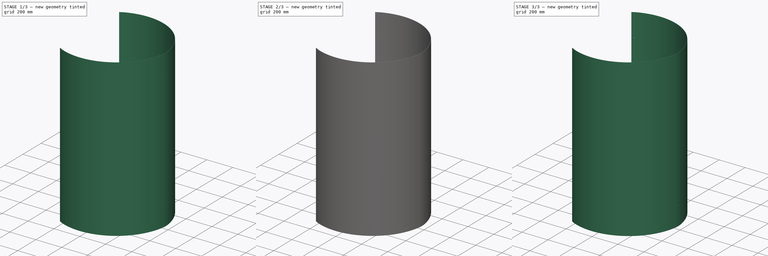
[diagram: build sequence overview — one tinted view per stage of 3, left to right]
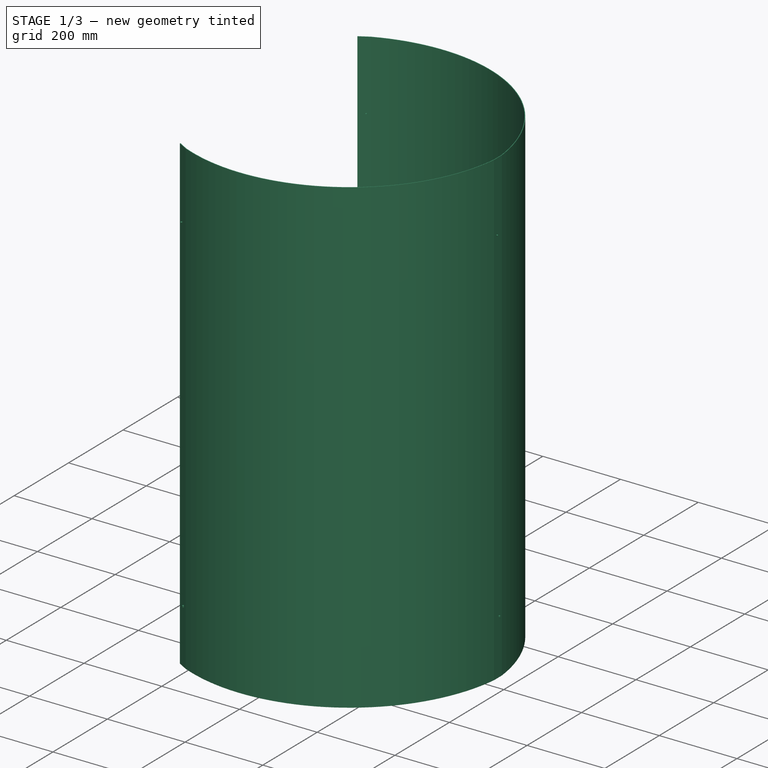
[diagram: stage 1 of 3 — iso view after this stage's code; geometry added in this stage tinted green]
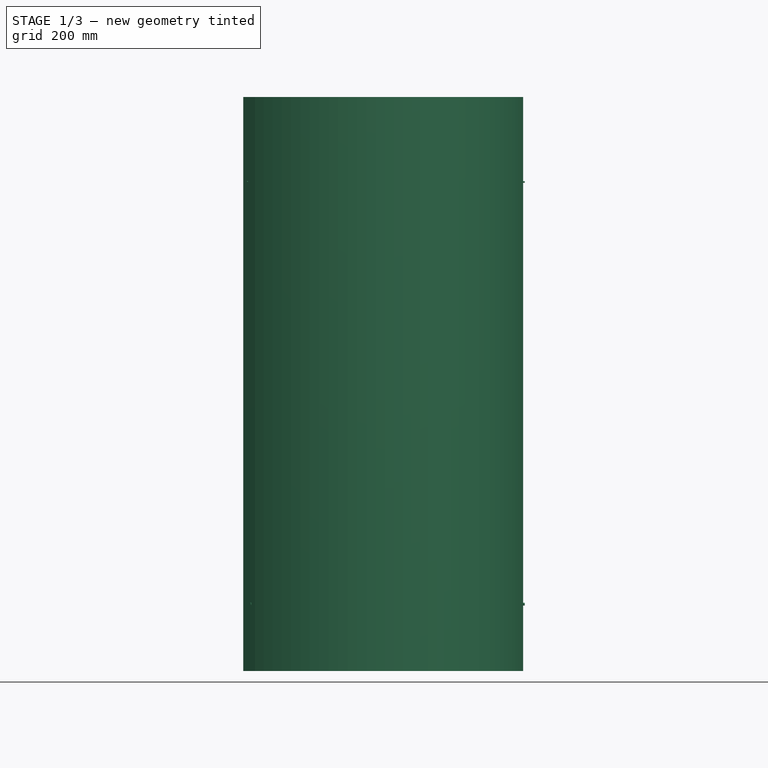
[diagram: stage 1 of 3 — front view after this stage's code; geometry added in this stage tinted green]
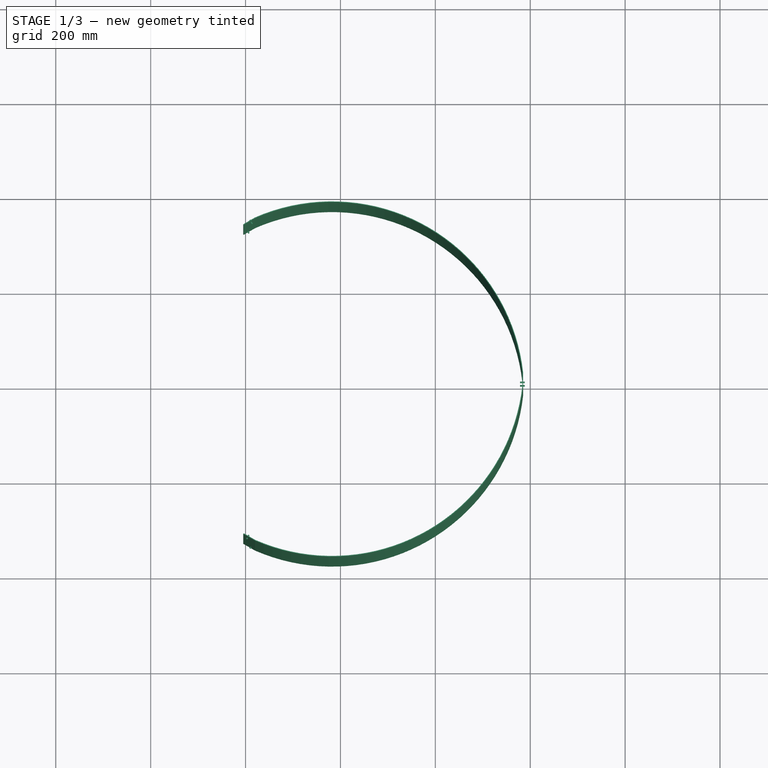
[diagram: stage 1 of 3 — top view after this stage's code; geometry added in this stage tinted green]
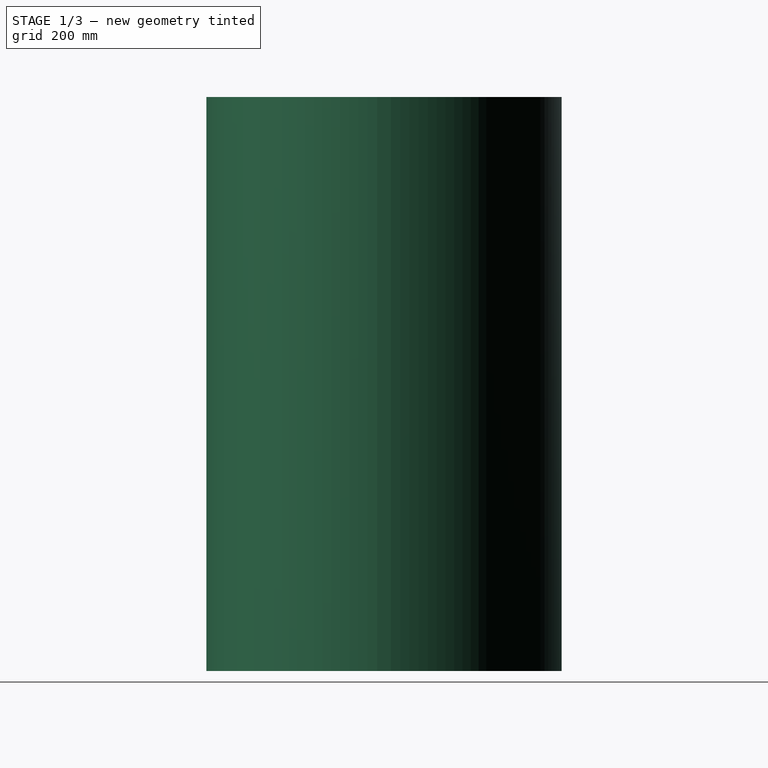
[diagram: stage 1 of 3 — right view after this stage's code; geometry added in this stage tinted green]
FCSTD DOCUMENT  (FreeCAD 1.1R38827 (Git))
Label: composit_stand3_plexiglass_outer_model
License: All rights reserved
LicenseURL: http://en.wikipedia.org/wiki/All_rights_reserved
objects: PartDesign::SubShapeBinder×3, App::Link×3, Part::FeaturePython×3, PartDesign::FeaturePython×2, PartDesign::Body×2, Part::Cylinder×1, PartDesign::CoordinateSystem×1, Sketcher::SketchObject×1, Part::Extrusion×1, Part::MultiFuse×1, PartDesign::Boolean×1
note: 20 computed .brp shape members not serialized (recipe doc carries the construction recipe); baked Part::Feature solids carry a one-line shape summary decoded from their .brp
EXTERNAL_REF file=composit_stand3_plexiglass_outer_main.FCStd obj=Connect
EXTERNAL_REF file=composit_stand3_plexiglass_outer_main.FCStd obj=Spreadsheet
EXTERNAL_REF file=composit_stand3_plexiglass_outer_main.FCStd obj=Populate001
EXTERNAL_REF file=composit_stand3_plexiglass_outer_main.FCStd obj=Sketch
EXTERNAL_REF file=composit_stand3_bar_main.FCStd obj=Spreadsheet
EXTERNAL_REF file=composit_stand3_bar_main.FCStd obj=Placment003
EXTERNAL_REF file=../ULZ-P02-14W.FCStd obj=Sketch
EXTERNAL_REF file=composit_stand3_plexiglass_outer_main.FCStd obj=PolarArray

FEATURE [PartDesign::SubShapeBinder] Binder
  BindCopyOnChange = 0
  BindMode = 0
  ClaimChildren = true
  Fuse = false
  MakeFace = true
  OffsetFill = false
  OffsetIntersection = false
  OffsetJoinType = 0
  OffsetOpenResult = false
  PartialLoad = false
  Relative = true
  Support = -> [<external composit_stand3_plexiglass_outer_main.FCStd>#Connect]
  _Version = 2
FEATURE [PartDesign::SubShapeBinder] Binder001
  BindCopyOnChange = 0
  BindMode = 0
  ClaimChildren = false
  Context = -> Body [Binder001.]
  Fuse = false
  MakeFace = true
  OffsetFill = false
  OffsetIntersection = false
  OffsetJoinType = 0
  OffsetOpenResult = false
  PartialLoad = false
  Relative = true
  Support = -> [Binder]
  _Version = 2
FEATURE [PartDesign::FeaturePython] BaseBend  # WARN: FeaturePython — macro-defined, semantics opaque (R4)
  BendSide = 0
  BendSketch = -> Binder001
  MidPlane = false
  Reverse = false
  Suppressed = false
  length = 1210
  radius = 1
  thickness = 1.5
  expr: length = <<composit_stand3_plexiglass_outer_main>>#<<Properties>>.height
  expr: thickness = <<composit_stand3_plexiglass_outer_main>>#<<Properties>>.thickness
FEATURE [Part::FeaturePython] Populate  label="Populate Populate PolarArray with bar_fix_placements with Cylinder"  # WARN: FeaturePython — macro-defined, semantics opaque (R4)
  Copying = 0
  ExposePlacement = false
  MarkerShape = 1
  MarkerSize = 0
  NumElements = 0
  Object = -> Cylinder
  OutputCompounding = 1
  PlacementsTo = -> Link
  Referencing = 0
  Type = lattice2PopulateCopies.LatticePopulateCopies
  isLattice = 0
FEATURE [PartDesign::Body] Body001
  AllowCompound = false
  Origin = -> Origin001
FEATURE [PartDesign::CoordinateSystem] Local_CS  label="top_LCS"
  AttacherType = Attacher::AttachEngine3D
  AttachmentOffset = pos=(383.5,0,1210) rot=(0,0,1;3.14159rad)
  AttachmentSupport = -> [XY_Plane]
  MapMode = 5
  Placement = pos=(383.5,0,1210) rot=(0,0,1;3.14159rad)
  expr: .AttachmentOffset.Base.x = <<composit_stand3_plexiglass_outer_main>>#<<base_Sketch>>.Constraints.offset
  expr: .AttachmentOffset.Base.z = <<BaseBend>>.length
FEATURE [App::Link] Link001  label="lamp_placement"
  LinkPlacement = pos=(0,0,-474) rot=(0,0,1;0rad)
  LinkTransform = true
  LinkedObject = -> <external composit_stand3_bar_main.FCStd>#Placment003
  Placement = pos=(0,0,-474) rot=(0,0,1;0rad)
  expr: .Placement.Base.z = <<composit_stand3_plexiglass_outer_main>>#<<Properties>>.height - <<composit_stand3_bar_main>>#<<Properties>>.height
FEATURE [PartDesign::SubShapeBinder] Binder002
  BindCopyOnChange = 0
  BindMode = 0
  ClaimChildren = true
  Fuse = false
  MakeFace = true
  OffsetFill = false
  OffsetIntersection = false
  OffsetJoinType = 0
  OffsetOpenResult = false
  PartialLoad = false
  Relative = false
  Support = -> [<external ../ULZ-P02-14W.FCStd>#Sketch]
  _Version = 2
  expr: Support = <<ULZ-P02-14W>>#<<holes>>._self
FEATURE [App::Link] Link003  label="PolarArray"
  LinkedObject = -> <external composit_stand3_plexiglass_outer_main.FCStd>#PolarArray
FEATURE [Part::FeaturePython] Populate001  label="Populate PolarArray with lamp_placement"  # WARN: FeaturePython — macro-defined, semantics opaque (R4)
  Copying = 0
  ExposePlacement = false
  MarkerShape = 1
  MarkerSize = 0
  NumElements = 3
  Object = -> Link001
  OutputCompounding = 0
  PlacementsTo = -> Link003
  Referencing = 0
  Type = lattice2PopulateCopies.LatticePopulateCopies
  isLattice = 1
FEATURE [Sketcher::SketchObject] Sketch
  ArcFitTolerance = 1e-06
  FullyConstrained = false
  MakeInternals = false
  sketch-geometry (5):
    g0: Circle CenterX=-4.15 CenterY=445 CenterZ=0 NormalX=0 NormalY=0 NormalZ=1 AngleXU=0 Radius=1.7
    g1: ArcOfCircle CenterX=4.15 CenterY=-446.311 CenterZ=0 NormalX=0 NormalY=0 NormalZ=1 AngleXU=0 Radius=1.7 StartAngle=3.14159 EndAngle=6.28319
    g2: ArcOfCircle CenterX=4.15 CenterY=-443.689 CenterZ=0 NormalX=0 NormalY=0 NormalZ=1 AngleXU=0 Radius=1.7 StartAngle=-2.7e-15 EndAngle=3.14159
    g3: LineSegment StartX=2.45 StartY=-446.311 StartZ=0 EndX=2.45 EndY=-443.689 EndZ=0
    g4: LineSegment StartX=5.85 StartY=-446.311 StartZ=0 EndX=5.85 EndY=-443.689 EndZ=0
  constraints (10):
    c: Coincident(g0,g-3)
    c: Diameter(g0) = 3.4
    c: Tangent(g1,g3) = 1.5708
    c: Tangent(g1,g4) = -1.5708
    c: Tangent(g2,g3) = 1.5708
    c: Tangent(g2,g4) = -1.5708
    c: Equal(g1,g2)
    c: Vertical(g3)
    c: Symmetric(g1,g2,g-4)
    c: Equal(g2,g0)
FEATURE [Part::Extrusion] Extrude001
  Base = -> Sketch
  Dir = (0,0,1)
  DirMode = 2
  FaceMakerClass = Part::FaceMakerBullseye
  FaceMakerMode = 3
  LengthFwd = 10
  LengthRev = 0
  Solid = true
  Symmetric = true
FEATURE [Part::FeaturePython] Populate002  label="Populate Populate PolarArray with lamp_placement with Extrude"  # WARN: FeaturePython — macro-defined, semantics opaque (R4)
  Copying = 0
  ExposePlacement = false
  MarkerShape = 1
  MarkerSize = 0
  NumElements = 0
  Object = -> Extrude001
  OutputCompounding = 1
  PlacementsTo = -> Populate001
  Referencing = 0
  Type = lattice2PopulateCopies.LatticePopulateCopies
  isLattice = 0
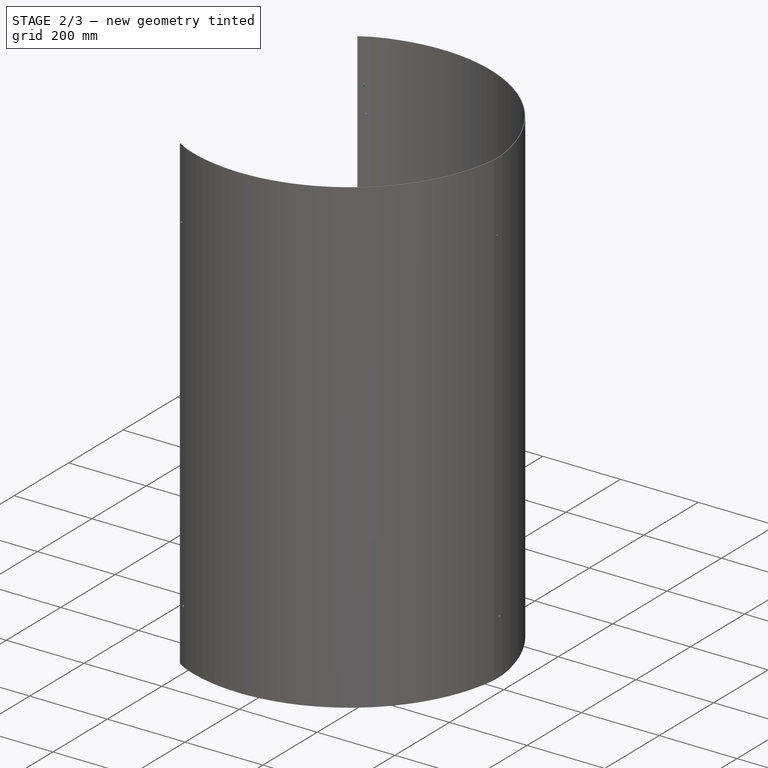
[diagram: stage 2 of 3 — iso view after this stage's code; geometry added in this stage tinted green]
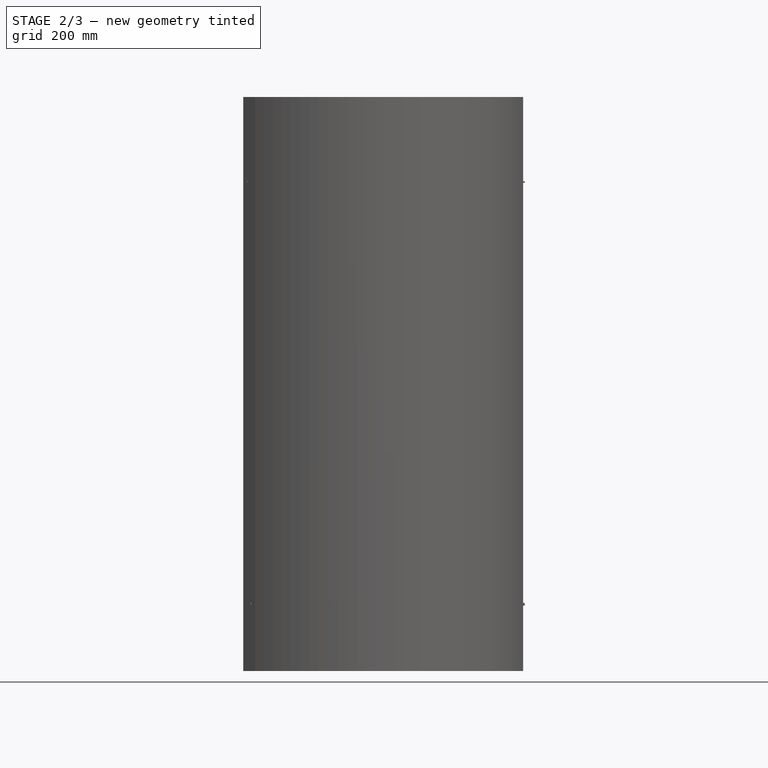
[diagram: stage 2 of 3 — front view after this stage's code; geometry added in this stage tinted green]
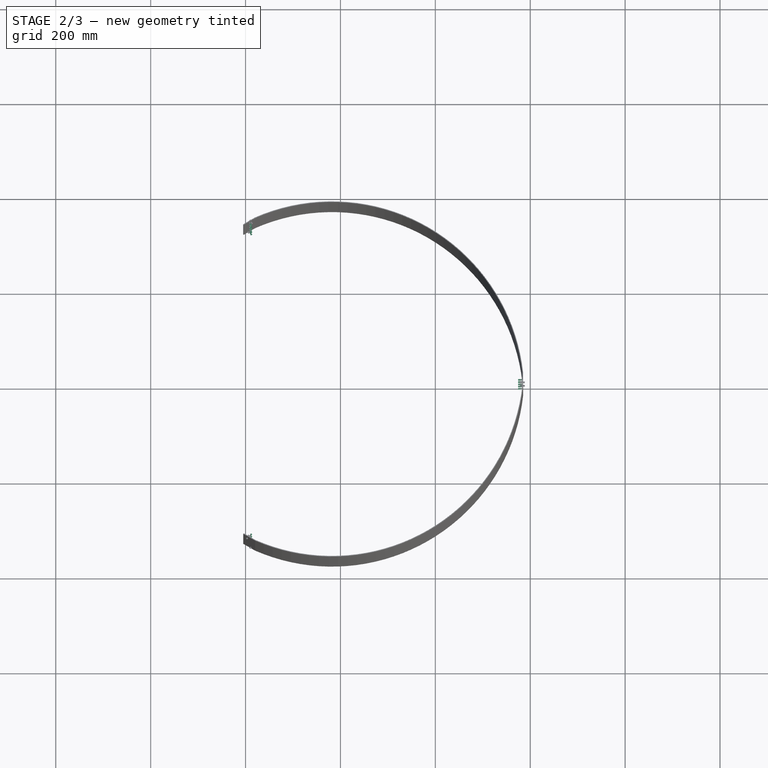
[diagram: stage 2 of 3 — top view after this stage's code; geometry added in this stage tinted green]
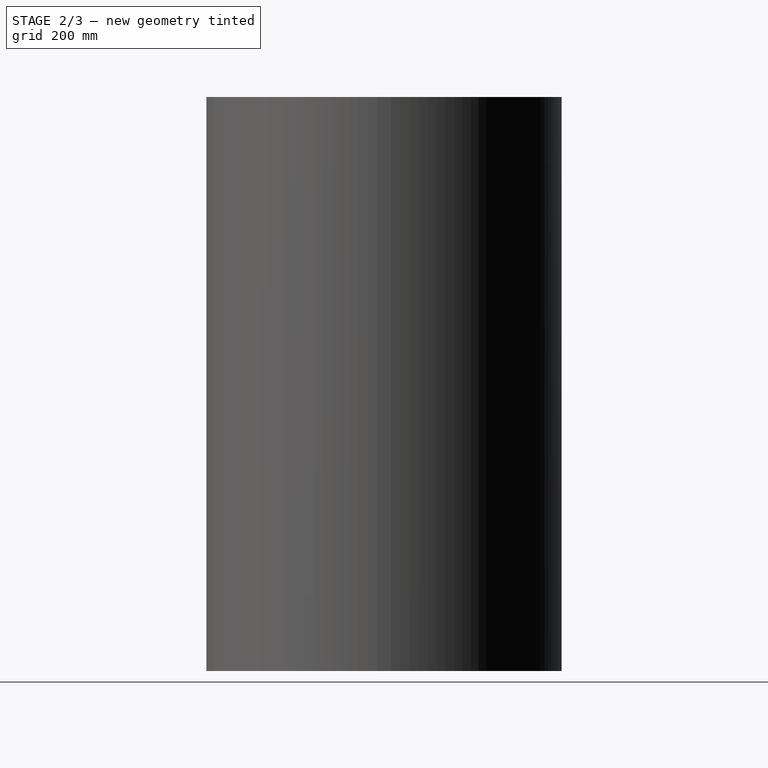
[diagram: stage 2 of 3 — right view after this stage's code; geometry added in this stage tinted green]
FEATURE [App::Link] Link  label="Populate PolarArray with bar_fix_placements"
  LinkedObject = -> <external composit_stand3_plexiglass_outer_main.FCStd>#Populate001
FEATURE [Part::Cylinder] Cylinder
  Angle = 360
  AttacherType = Attacher::AttachEngine3D
  FirstAngle = 0
  Height = 10
  Radius = 1.7
  SecondAngle = 0
FEATURE [PartDesign::Body] Body  label="plexiglass_outer"
  AllowCompound = false
  Group = -> [Binder001,BaseBend,Extend,Boolean,Local_CS]
  Origin = -> Origin
  Tip = -> Boolean

RESOLVED EXTERNAL PARTS (link-assembly join: the EXTERNAL_REF files above that resolve inside this repo's crawl, each included once):
---- part ../ULZ-P02-14W.FCStd = doc fcstd_d946428e1785 ----
FCSTD DOCUMENT  (FreeCAD 1.1R38827 (Git))
Label: ULZ-P02-14W
License: All rights reserved
LicenseURL: http://en.wikipedia.org/wiki/All_rights_reserved
objects: Sketcher::SketchObject×4, Part::FeaturePython×4, App::DocumentObjectGroup×3, Path::FeaturePython×3, App::FeaturePython×1, Part::Part2DObjectPython×1, PartDesign::SubShapeBinder×1, PartDesign::Pad×1, PartDesign::CoordinateSystem×1, PartDesign::Body×1
note: 20 computed .brp shape members not serialized (recipe doc carries the construction recipe); baked Part::Feature solids carry a one-line shape summary decoded from their .brp

FEATURE [Sketcher::SketchObject] Sketch  label="holes"
  ArcFitTolerance = 0
  FullyConstrained = true
  MakeInternals = false
  sketch-geometry (3):
    g0: Circle CenterX=-4.15 CenterY=445 CenterZ=0 NormalX=0 NormalY=0 NormalZ=1 AngleXU=0 Radius=1.6
    g1: Circle CenterX=4.15 CenterY=-445 CenterZ=0 NormalX=0 NormalY=0 NormalZ=1 AngleXU=0 Radius=1.6
    g2: GeomPoint [constr] X=-9.05 Y=0 Z=0
  constraints (8):
    c: Symmetric(g1,g0,g-1)
    c: Distance(g0,g1) = 890.039
    c: PointOnObject(g2,g-1)
    c: DistanceX(g2,g0) = 4.9
    c: DistanceX(g2) = -9.05
    c: DistanceY(g1,g0) = 890
    c: Equal(g1,g0)
    c: Diameter(g1) = 3.2
FEATURE [App::FeaturePython] SetupSheet  # Path/CAM operation (typed FeaturePython)
  ClearanceHeightExpression = OpStockZMax+SetupSheet.ClearanceHeightOffset
  ClearanceHeightOffset = 5
  CoolantMode = 0
  CoolantModes = None | Flood | Mist
  FinalDepthExpression = -0.1 mm
  HorizRapid = 0
  ProfileDirection = 1
  ProfileSide = 0
  ProfileUseComp = true
  ProfileprocessCircles = true
  ProfileprocessHoles = true
  ProfileprocessPerimeter = true
  SafeHeightExpression = OpStockZMax+SetupSheet.SafeHeightOffset
  SafeHeightOffset = 3
  StartDepthExpression = 3 mm
  StepDownExpression = 4 mm
  VertRapid = 0
FEATURE [Part::Part2DObjectPython] Clone2D  label="Model-Sketch"  # Draft 2D object (typed FeaturePython)
  Fuse = false
  Objects = -> [Sketch]
  PathResource = Model
  Placement = pos=(-5.75,446.581,0) rot=(0,0,1;0rad)
  Scale = (1,1,1)
FEATURE [App::DocumentObjectGroup] Model
  Group = -> [Clone2D]
FEATURE [Part::FeaturePython] ToolBit  label="3.175mm Endmill"  # Path/CAM toolbit (typed FeaturePython)
  BitPropertyNames = Chipload | CuttingEdgeHeight | Diameter | Flutes | Length | Material | ShankDiameter | SpindleDirection
  BitShape = <path>
  Chipload = 0
  CuttingEdgeHeight = 30
  Diameter = 3.175
  Flutes = 0
  Length = 10
  Material = 0
  ShankDiameter = 3
  ShapeName = endmill
  SpindleDirection = 0
FEATURE [Path::FeaturePython] __175mm_Endmill  label="3.175mm Endmill001"  # Path/CAM operation (typed FeaturePython)
  HorizFeed = 33.3333
  HorizRapid = 0
  SpindleDir = 0
  SpindleSpeed = 18000
  Tool = -> ToolBit
  ToolNumber = 1
  VertFeed = 8.33333
  VertRapid = 0
  expr: HorizRapid = SetupSheet.HorizRapid
  expr: VertRapid = SetupSheet.VertRapid
FEATURE [App::DocumentObjectGroup] Tools
  Group = -> [__175mm_Endmill]
FEATURE [Part::FeaturePython] Stock  # WARN: FeaturePython — macro-defined, semantics opaque (R4)
  Base = -> Model
  ExtXneg = 1
  ExtXpos = 1
  ExtYneg = 1
  ExtYpos = 1
  ExtZneg = 0
  ExtZpos = 1
  Placement = pos=(-5.89217,-448.284,0) rot=(0,0,1;0rad)
  StockType = FromBase
FEATURE [Path::FeaturePython] Profile  # Path/CAM operation (typed FeaturePython)
  Active = true
  AreaParams:
    Tolerance = 1e-07
    FitArcs = True
    Simplify = False
    CleanDistance = 0.0
    Accuracy = 0.01
    Unit = 1.0
    MinArcPoints = 4
    MaxArcPoints = 100
    ClipperScale = 10000000.0
    Fill = 0
    Coplanar = 0
    Reorient = True
    Outline = False
    Explode = False
    OpenMode = 0
    Deflection = 0.01
    SubjectFill = 0
    ClipFill = 0
    Offset = -1.5875
    ExtraPass = 0
    Stepover = 0.0
    LastStepover = 0.0
    JoinType = 0
    EndType = 0
    MiterLimit = 2.0
    RoundPrecision = 0.0
    PocketMode = 0
    ToolRadius = 1.0
    PocketExtraOffset = 0.0
    PocketStepover = 0.0
    PocketLastStepover = 0.0
    FromCenter = False
    Angle = 45.0
    AngleShift = 0.0
    Shift = 0.0
    Thicken = False
    SectionCount = -1
    Stepdown = 1.0
    SectionOffset = 0.0
    SectionTolerance = 1e-06
    SectionMode = 2
    Project = False
  ClearanceHeight = 6
  CoolantMode = 0
  CycleTime = 00:00:57
  Direction = 1
  FinalDepth = -0.1
  HandleMultipleFeatures = 0
  JoinType = 0
  MiterLimit = 0.1
  OffsetExtra = 0
  OpFinalDepth = 0
  OpStartDepth = 1
  OpStockZMax = 1
  OpStockZMin = 0
  OpToolDiameter = 3.175
  PathParams = {'orientation': 1, 'feedrate': 33.333333333333336, 'feedrate_v': 8.333333333333334, 'verbose': True, 'resume_height': 4.0, 'retraction': 6.0, 'return_end': True, 'preamble': False}
  SafeHeight = 4
  Side = 1
  SplitArcs = false
  StartDepth = 3
  StartPoint = (0,0,0)
  StepDown = 4
  ToolController = -> __175mm_Endmill
  UseComp = true
  UseStartPoint = false
  processCircles = true
  processHoles = true
  processPerimeter = true
  expr: ClearanceHeight = OpStockZMax + SetupSheet.ClearanceHeightOffset
  expr: FinalDepth = -0.1 mm
  expr: SafeHeight = OpStockZMax + SetupSheet.SafeHeightOffset
  expr: StartDepth = 3 mm
  expr: StepDown = 4 mm
FEATURE [App::DocumentObjectGroup] Operations
  Group = -> [Profile]
FEATURE [Path::FeaturePython] Job  # Path/CAM operation (typed FeaturePython)
  CycleTime = 00:00:57
  Fixtures = G54
  GeometryTolerance = 0.01
  JobType = 0
  LastPostProcessDate = 2023-12-11 14:23:56.391449
  LastPostProcessOutput = <userpath>/2CAF-B51C/Job-0.tap
  Model = -> Model
  Operations = -> Operations
  OrderOutputBy = 2
  PostProcessor = 3
  PostProcessorOutputFile = %j.tap
  SetupSheet = -> SetupSheet
  SplitOutput = true
  Stock = -> Stock
  Tools = -> Tools
FEATURE [Part::FeaturePython] BoundBox  label="BoundBox of Model-Sketch"  # WARN: FeaturePython — macro-defined, semantics opaque (R4)
  Center = (-5.75,446.581,0)
  CompoundTraversal = 0
  OrientMode = 0
  Padding = 0
  Precision = false
  ScaleFactor = 1
  ShapeLink = -> Clone2D
  Size = (11.5,893.177,0)
FEATURE [Sketcher::SketchObject] Sketch001
  ArcFitTolerance = 0
  FullyConstrained = true
  MakeInternals = false
  Placement = pos=(0,0,0) rot=(1,0,0;1.5708rad)
  sketch-geometry (7):
    g0: LineSegment StartX=-7.3 StartY=1.25 StartZ=0 EndX=7.3 EndY=1.25 EndZ=0
    g1: GeomPoint [constr] X=0 Y=9.25 Z=0
    g2: ArcOfEllipse CenterX=5.1e-15 CenterY=1.25 CenterZ=0 NormalX=0 NormalY=0 NormalZ=1 MajorRadius=8 MinorRadius=7.3 AngleXU=-1.5708 StartAngle=1.5708 EndAngle=4.71239
    g3: LineSegment [constr] StartX=1e-14 StartY=-6.75 StartZ=0 EndX=0 EndY=9.25 EndZ=0
    g4: LineSegment [constr] StartX=7.3 StartY=1.25 StartZ=0 EndX=-7.3 EndY=1.25 EndZ=0
    g5: GeomPoint [constr] X=7.7e-15 Y=-2.02261 Z=0
    g6: GeomPoint [constr] X=3e-15 Y=4.52261 Z=0
  constraints (9):
    c: DistanceX(g0,g0) = 14.6
    c: PointOnObject(g1,g-2)
    c: InternalAlignment(g3-g6 -> g2) x4
    c: Coincident(g3,g1)
    c: Perpendicular(g2,g0) = 4.71239
    c: Perpendicular(g2,g0) = 1.5708
    c: Horizontal(g0)
    c: DistanceY(g2,g1) = 8
    c: DistanceY(g-1,g2) = 1.25
FEATURE [Sketcher::SketchObject] Sketch002
  ArcFitTolerance = 0
  FullyConstrained = true
  MakeInternals = false
  Placement = pos=(0,0,0) rot=(1,0,0;1.5708rad)
  sketch-geometry (8):
    g0: LineSegment StartX=-9 StartY=-5e-16 StartZ=0 EndX=9 EndY=-5e-16 EndZ=0
    g1: LineSegment [constr] StartX=-9 StartY=-5e-16 StartZ=0 EndX=0 EndY=11 EndZ=0
    g2: LineSegment [constr] StartX=7e-16 StartY=11 StartZ=0 EndX=9 EndY=0 EndZ=0
    g3: ArcOfEllipse CenterX=0 CenterY=0 CenterZ=0 NormalX=0 NormalY=0 NormalZ=1 MajorRadius=11 MinorRadius=9 AngleXU=1.5708 StartAngle=4.71239 EndAngle=7.85398
    g4: LineSegment [constr] StartX=7e-16 StartY=11 StartZ=0 EndX=-7e-16 EndY=-11 EndZ=0
    g5: LineSegment [constr] StartX=-9 StartY=6e-16 StartZ=0 EndX=9 EndY=-6e-16 EndZ=0
    g6: GeomPoint [constr] X=7e-16 Y=6.32456 Z=0
    g7: GeomPoint [constr] X=-4e-16 Y=-6.32456 Z=0
  constraints (12):
    c: DistanceX(g0,g0) = 18
    c: Coincident(g0,g1)
    c: Coincident(g1,g2)
    c: Coincident(g2,g0)
    c: Distance(g1,g0) = 11
    c: InternalAlignment(g4-g7 -> g3) x4
    c: Perpendicular(g3,g0) = 1.5708
    c: Equal(g1,g2)
    c: Horizontal(g0)
    c: Coincident(g3,g0)
    c: Coincident(g4,g1)
    c: Coincident(g3,g-1)
FEATURE [PartDesign::SubShapeBinder] Binder
  BindCopyOnChange = 0
  BindMode = 0
  ClaimChildren = true
  Context = -> Body [Binder.]
  Fuse = false
  MakeFace = true
  OffsetFill = false
  OffsetIntersection = false
  OffsetJoinType = 0
  OffsetOpenResult = false
  PartialLoad = false
  Relative = true
  Support = -> [Sketch001]
  _Version = 2
FEATURE [PartDesign::Pad] Pad
  Direction = (0,1,0)
  Length = 820
  Length2 = 10
  Midplane = true
  Profile = -> Binder
  Suppressed = false
  Type = 0
FEATURE [PartDesign::CoordinateSystem] Local_CS
  AttacherType = Attacher::AttachEngine3D
  AttachmentSupport = -> [XY_Plane]
  MapMode = 5
FEATURE [PartDesign::Body] Body
  AllowCompound = false
  Group = -> [Binder,Pad,Local_CS]
  Origin = -> Origin
  Tip = -> Pad
FEATURE [Sketcher::SketchObject] Sketch003
  ArcFitTolerance = 0
  FullyConstrained = true
  MakeInternals = false
  Placement = pos=(0,416,0) rot=(0,0,1;0rad)
  sketch-geometry (8):
    g0: LineSegment StartX=-9 StartY=29.05 StartZ=0 EndX=-9 EndY=0 EndZ=0
    g1: LineSegment StartX=-9 StartY=0 StartZ=0 EndX=9 EndY=0 EndZ=0
    g2: LineSegment StartX=9 StartY=0 StartZ=0 EndX=9 EndY=21.4 EndZ=0
    g3: LineSegment StartX=9 StartY=21.4 StartZ=0 EndX=0.256748 EndY=32.3031 EndZ=0
    g4: ArcOfCircle CenterX=-3.8 CenterY=29.05 CenterZ=0 NormalX=0 NormalY=0 NormalZ=1 AngleXU=0 Radius=5.2 StartAngle=0.675901 EndAngle=3.14159
    g5: GeomPoint [constr] X=-9 Y=43.8466 Z=0
    g6: LineSegment [constr] StartX=0 StartY=34.25 StartZ=0 EndX=-3.8 EndY=34.25 EndZ=0
    g7: Circle CenterX=-3.8 CenterY=29.05 CenterZ=0 NormalX=0 NormalY=0 NormalZ=1 AngleXU=0 Radius=2
  constraints (20):
    c: Vertical(g0)
    c: Coincident(g0,g1)
    c: PointOnObject(g1,g-1)
    c: Coincident(g1,g2)
    c: Vertical(g2)
    c: Coincident(g2,g3)
    c: Symmetric(g0,g1,g-2)
    c: PointOnObject(g5,g0)
    c: PointOnObject(g5,g3)
    c: Tangent(g0,g4) = -1.5708
    c: Tangent(g3,g4) = -1.5708
    c: PointOnObject(g6,g-2)
    c: Tangent(g6,g4) = -1.5708
    c: Horizontal(g6)
    c: DistanceY(g6) = 34.25
    c: DistanceX(g0,g1) = 18
    c: DistanceY(g2,g2) = 21.4
    c: Radius(g4) = 5.2
    c: Coincident(g7,g4)
    c: Diameter(g7) = 4
FEATURE [Part::FeaturePython] Array  # Draft array (typed FeaturePython)
  Angle = 360
  ArrayType = 1
  Axis = (0,0,1)
  Base = -> Sketch003
  Center = (0,0,0)
  Count = 2
  Fuse = true
  IntervalAxis = (0,0,0)
  IntervalX = (50,0,0)
  IntervalY = (0,50,0)
  IntervalZ = (0,0,50)
  NumberCircles = 3
  NumberPolar = 2
  NumberX = 2
  NumberY = 2
  NumberZ = 1
  RadialDistance = 50
  Symmetry = 1
  TangentialDistance = 25
note: 1 file-system path scrubbed to <path> (originals preserved in the JSON sidecar)
---- part composit_stand3_bar_main.FCStd = doc fcstd_660642a5c5ee ----
FCSTD DOCUMENT  (FreeCAD 1.1R38827 (Git))
Label: composit_stand3_bar_main
License: All rights reserved
LicenseURL: http://en.wikipedia.org/wiki/All_rights_reserved
objects: Part::FeaturePython×4, Sketcher::SketchObject×2, Spreadsheet::Sheet×1, PartDesign::SubShapeBinder×1
note: 9 computed .brp shape members not serialized (recipe doc carries the construction recipe); baked Part::Feature solids carry a one-line shape summary decoded from their .brp
EXTERNAL_REF file=composit_stand3_bar_bottom_main.FCStd obj=Spreadsheet
EXTERNAL_REF file=../ULZ-P02-14W.FCStd obj=Sketch

FEATURE [Sketcher::SketchObject] Sketch  label="base_Sketch"
  ArcFitTolerance = 0
  FullyConstrained = true
  MakeInternals = false
  expr: .Constraints.length = <<Properties>>.length
  expr: .Constraints.width = <<Properties>>.width
  sketch-geometry (5):
    g0: LineSegment StartX=19 StartY=18.3 StartZ=0 EndX=0 EndY=18.3 EndZ=0
    g1: LineSegment StartX=0 StartY=18.3 StartZ=0 EndX=0 EndY=-18.3 EndZ=0
    g2: LineSegment StartX=0 StartY=-18.3 StartZ=0 EndX=19 EndY=-18.3 EndZ=0
    g3: LineSegment [constr] StartX=19 StartY=-18.3 StartZ=0 EndX=19 EndY=18.3 EndZ=0
    g4: GeomPoint [constr] X=9.5 Y=0 Z=0
  constraints (13):
    c: Coincident(g0,g1)
    c: Coincident(g1,g2)
    c: Coincident(g2,g3)
    c: Coincident(g3,g0)
    c: Horizontal(g0)
    c: Horizontal(g2)
    c: Vertical(g1)
    c: Vertical(g3)
    c: Symmetric(g2,g0,g4)
    c: PointOnObject(g4,g-1)
    c: PointOnObject(g1,g-2)
    c: DistanceX(g1,g0) = 19  'length'
    c: DistanceY(g1,g0) = 36.6  'width'
FEATURE [Spreadsheet::Sheet] Spreadsheet  label="Properties"
  cells = B2(width)==36.6 mm; C2(length)==19 mm; D2(height)==1684 mm; E2(thickness)==2 mm
FEATURE [Part::FeaturePython] Placment  label="bottom_placement"  # WARN: FeaturePython — macro-defined, semantics opaque (R4)
  AttacherType = Attacher::AttachEngine3D
  ExposePlacement = true
  MarkerShape = 1
  MarkerSize = 10
  NumElements = 1
  Placement = pos=(54,18.3,0) rot=(0,0,1;1.5708rad)
  Type = lattice2AttachablePlacement.AttachablePlacement
  isLattice = 1
  expr: .Placement.Base.x = <<composit_stand3_bar_bottom_main>>#<<Properties>>.width / 2 + 4 mm
  expr: .Placement.Base.y = <<Properties>>.width / 2
FEATURE [Part::FeaturePython] Placment001  label="bottom_placement2"  # WARN: FeaturePython — macro-defined, semantics opaque (R4)
  AttacherType = Attacher::AttachEngine3D
  ExposePlacement = true
  MarkerShape = 1
  MarkerSize = 10
  NumElements = 1
  Placement = pos=(54,-18.3,0) rot=(0,0,-1;1.5708rad)
  Type = lattice2AttachablePlacement.AttachablePlacement
  isLattice = 1
  expr: .Placement.Base.x = <<bottom_placement>>.Placement.Base.x
  expr: .Placement.Base.y = -<<bottom_placement>>.Placement.Base.y
FEATURE [Part::FeaturePython] Placment003  label="lamp_placement"  # WARN: FeaturePython — macro-defined, semantics opaque (R4)
  AttacherType = Attacher::AttachEngine3D
  ExposePlacement = true
  MarkerShape = 1
  MarkerSize = 20
  NumElements = 1
  Placement = pos=(0,0,1060) rot=(0.57735,0.57735,0.57735;2.0944rad)
  Type = lattice2AttachablePlacement.AttachablePlacement
  isLattice = 1
  expr: .Placement.Base.z = <<Properties>>.height - 624 mm
FEATURE [Part::FeaturePython] Placment004  label="top_part_placement"  # WARN: FeaturePython — macro-defined, semantics opaque (R4)
  AttacherType = Attacher::AttachEngine3D
  ExposePlacement = true
  MarkerShape = 1
  MarkerSize = 20
  NumElements = 1
  Placement = pos=(2,0,1678) rot=(0,0,1;0rad)
  Type = lattice2AttachablePlacement.AttachablePlacement
  isLattice = 1
  expr: .Placement.Base.x = <<Properties>>.thickness
  expr: .Placement.Base.z = <<Properties>>.height - 6 mm
FEATURE [PartDesign::SubShapeBinder] Binder  label="lamp_holes_import"
  BindCopyOnChange = 0
  BindMode = 0
  ClaimChildren = false
  Fuse = false
  MakeFace = true
  OffsetFill = false
  OffsetIntersection = false
  OffsetJoinType = 0
  OffsetOpenResult = false
  PartialLoad = false
  Relative = true
  Support = -> [<external ../ULZ-P02-14W.FCStd>#Sketch]
  _Version = 2
FEATURE [Sketcher::SketchObject] Sketch001  label="lamp_holes_sketch"
  ArcFitTolerance = 0
  ExternalGeometry = -> [Binder]
  FullyConstrained = true
  MakeInternals = false
  sketch-geometry (12):
    g0: Circle CenterX=-4.15 CenterY=445 CenterZ=0 NormalX=0 NormalY=0 NormalZ=1 AngleXU=0 Radius=1.7
    g1: Circle CenterX=4.15 CenterY=445 CenterZ=0 NormalX=0 NormalY=0 NormalZ=1 AngleXU=0 Radius=1.7
    g2: ArcOfCircle CenterX=4.15 CenterY=-446 CenterZ=0 NormalX=0 NormalY=0 NormalZ=1 AngleXU=0 Radius=1.7 StartAngle=3.14159 EndAngle=6.28319
    g3: ArcOfCircle CenterX=4.15 CenterY=-444 CenterZ=0 NormalX=0 NormalY=0 NormalZ=1 AngleXU=0 Radius=1.7 StartAngle=-2.7e-15 EndAngle=3.14159
    g4: LineSegment StartX=2.45 StartY=-446 StartZ=0 EndX=2.45 EndY=-444 EndZ=0
    g5: LineSegment StartX=5.85 StartY=-446 StartZ=0 EndX=5.85 EndY=-444 EndZ=0
    g6: ArcOfCircle CenterX=-4.15 CenterY=-446 CenterZ=0 NormalX=0 NormalY=0 NormalZ=1 AngleXU=0 Radius=1.7 StartAngle=3.14159 EndAngle=6.28319
    g7: ArcOfCircle CenterX=-4.15 CenterY=-444 CenterZ=0 NormalX=0 NormalY=0 NormalZ=1 AngleXU=0 Radius=1.7 StartAngle=1.11e-14 EndAngle=3.14159
    g8: LineSegment StartX=-5.85 StartY=-446 StartZ=0 EndX=-5.85 EndY=-444 EndZ=0
    g9: LineSegment StartX=-2.45 StartY=-446 StartZ=0 EndX=-2.45 EndY=-444 EndZ=0
    g10: LineSegment [constr] StartX=4.15 StartY=-446 StartZ=0 EndX=4.15 EndY=-445 EndZ=0
    g11: LineSegment [constr] StartX=4.15 StartY=-445 StartZ=0 EndX=4.15 EndY=-444 EndZ=0
  constraints (26):
    c: Coincident(g0,g-3)
    c: Tangent(g2,g4) = 1.5708
    c: Tangent(g2,g5) = -1.5708
    c: Tangent(g3,g4) = 1.5708
    c: Tangent(g3,g5) = -1.5708
    c: Equal(g2,g3)
    c: Vertical(g4)
    c: Tangent(g6,g8) = 1.5708
    c: Tangent(g6,g9) = -1.5708
    c: Tangent(g7,g8) = 1.5708
    c: Tangent(g7,g9) = -1.5708
    c: Equal(g6,g7)
    c: Equal(g7,g3)
    c: Equal(g0,g1)
    c: Diameter(g0) = 3.4
    c: Symmetric(g1,g0,g-2)
    c: Symmetric(g3,g7,g-2)
    c: Symmetric(g6,g2,g-2)
    c: Coincident(g10,g2)
    c: Coincident(g10,g-4)
    c: Vertical(g10)
    c: Coincident(g10,g11)
    c: Coincident(g11,g3)
    c: DistanceY(g10,g10) = 1
    c: DistanceY(g11,g11) = 1
    c: Equal(g7,g0)
---- part composit_stand3_plexiglass_outer_main.FCStd = doc fcstd_15c02bd071c0 ----
FCSTD DOCUMENT  (FreeCAD 1.1R38827 (Git))
Label: composit_stand3_plexiglass_outer_main
License: All rights reserved
LicenseURL: http://en.wikipedia.org/wiki/All_rights_reserved
objects: Part::FeaturePython×5, Sketcher::SketchObject×2, Part::Mirroring×2, App::Link×1, Part::Compound×1, Spreadsheet::Sheet×1
note: 12 computed .brp shape members not serialized (recipe doc carries the construction recipe); baked Part::Feature solids carry a one-line shape summary decoded from their .brp
EXTERNAL_REF file=composit_stand3_basement_bottom_main.FCStd obj=Placment
EXTERNAL_REF file=composit_stand3_bar_main.FCStd obj=Sketch

FEATURE [App::Link] Link  label="bar_placement"
  LinkTransform = true
  LinkedObject = -> <external composit_stand3_basement_bottom_main.FCStd>#Placment
FEATURE [Sketcher::SketchObject] Sketch001  label="base_Sketch_per"
  ArcFitTolerance = 0
  FullyConstrained = true
  MakeInternals = false
  expr: .Constraints.r = <<bar_placement>>.LinkedObject.Placement.Base.x
  expr: Constraints[2] = <<composit_stand3_bar_main>>#<<base_Sketch>>.Constraints.width - 8 mm
  sketch-geometry (1):
    g0: LineSegment StartX=383.5 StartY=-14.3 StartZ=0 EndX=383.5 EndY=14.3 EndZ=0
  constraints (3):
    c: Symmetric(g0,g0,g-1)
    c: DistanceX(g0) = 383.5  'r'
    c: DistanceY(g0,g0) = 28.6
FEATURE [Sketcher::SketchObject] Sketch  label="base_Sketch"
  ArcFitTolerance = 0
  ExternalGeometry = -> [Sketch001]
  FullyConstrained = false
  MakeInternals = false
  sketch-geometry (2):
    g0: ArcOfCircle CenterX=-17.9061 CenterY=-31.0143 CenterZ=0 NormalX=0 NormalY=0 NormalZ=1 AngleXU=0 Radius=403.956 StartAngle=0.112413 EndAngle=1.0472
    g1: LineSegment [constr] StartX=-17.9061 StartY=-31.0143 StartZ=0 EndX=184.072 EndY=318.822 EndZ=0
  constraints (6):
    c: Coincident(g1,g0)
    c: Coincident(g1,g0)
    c: Angle(g1) = 1.0472
    c: Coincident(g0,g-3)
    c: PointOnObject(g-1,g1)
    c: DistanceX(g-1,g-3) = 383.5  'offset'
FEATURE [Part::FeaturePython] PolarArray  # WARN: FeaturePython — macro-defined, semantics opaque (R4)
  Alignment = 0
  AttacherType = Attacher::AttachEngine3D
  CellStart = A1
  Count = 3
  DistributionLaw = 0
  EndInclusive = false
  ExposePlacement = false
  FlipX = false
  FlipZ = false
  GeneratorMode = 0
  MarkerShape = 1
  MarkerSize = 0
  NumElements = 3
  OrientMode = 2
  Radius = 383.5
  Reverse = false
  SpanEnd = 360
  SpanStart = 0
  Step = 120
  Type = lattice2PolarArray2.PolarArray
  UseArcRadius = false
  UseArcRange = 0
  VSGVersion = 1
  Values = 0.0 | 120.0 | 240.0
  ValuesSource = 2
  isLattice = 1
  expr: Radius = <<base_Sketch_per>>.Constraints.r
FEATURE [Part::FeaturePython] Populate  label="Populate PolarArray with base_Sketch_per"  # WARN: FeaturePython — macro-defined, semantics opaque (R4)
  Copying = 0
  ExposePlacement = false
  MarkerShape = 1
  MarkerSize = 0
  NumElements = 0
  Object = -> Sketch001
  OutputCompounding = 1
  PlacementsTo = -> PolarArray
  Referencing = 1
  Type = lattice2PopulateCopies.LatticePopulateCopies
  isLattice = 0
FEATURE [Part::Mirroring] Part__Mirroring  label="base_Sketch (Mirror #1)"
  Base = (0,0,0)
  Normal = (0.866025,-0.5,0)
  Source = -> Sketch
  expr: .Normal.x = sin(60)
  expr: .Normal.y = -cos(60)
FEATURE [Part::Compound] Compound
  Links = -> [Sketch,Part__Mirroring]
FEATURE [Part::Mirroring] Part__Mirroring001  label="Compound (Mirror #2)"
  Base = (0,0,0)
  Normal = (0,1,0)
  Source = -> Compound
FEATURE [Part::FeaturePython] Connect  # WARN: FeaturePython — macro-defined, semantics opaque (R4)
  Objects = -> [Compound,Part__Mirroring001,Populate]
  Tolerance = 0
FEATURE [Part::FeaturePython] LinearArray  label="bar_fix_placements"  # WARN: FeaturePython — macro-defined, semantics opaque (R4)
  Alignment = 0
  CellStart = A1
  Count = 5
  Dir = (1,0,0)
  DirIsDriven = true
  DistributionLaw = 0
  DrivenProperty = 1
  EndInclusive = true
  ExposePlacement = false
  GeneratorMode = 0
  MarkerShape = 1
  MarkerSize = 0
  NumElements = 5
  OrientMode = 1
  Placement = pos=(1,0,0) rot=(0,-1,0;1.5708rad)
  Point = (0,0,0)
  PointIsDriven = true
  Reverse = false
  SpanEnd = 1100
  SpanStart = 16
  Step = 271
  Type = lattice2LinearArray.LinearArray
  VSGVersion = 1
  Values = 16.0 | 287.0 | 558.0 | 829.0 | 1100.0
  ValuesSource = 2
  isLattice = 1
FEATURE [Spreadsheet::Sheet] Spreadsheet  label="Properties"
  cells = B2(height)==1210 mm; C2(thickness)==1.5 mm
FEATURE [Part::FeaturePython] Populate001  label="Populate PolarArray with bar_fix_placements"  # WARN: FeaturePython — macro-defined, semantics opaque (R4)
  Copying = 0
  ExposePlacement = false
  MarkerShape = 1
  MarkerSize = 0
  NumElements = 15
  Object = -> LinearArray
  OutputCompounding = 0
  PlacementsTo = -> PolarArray
  Referencing = 0
  Type = lattice2PopulateCopies.LatticePopulateCopies
  isLattice = 1
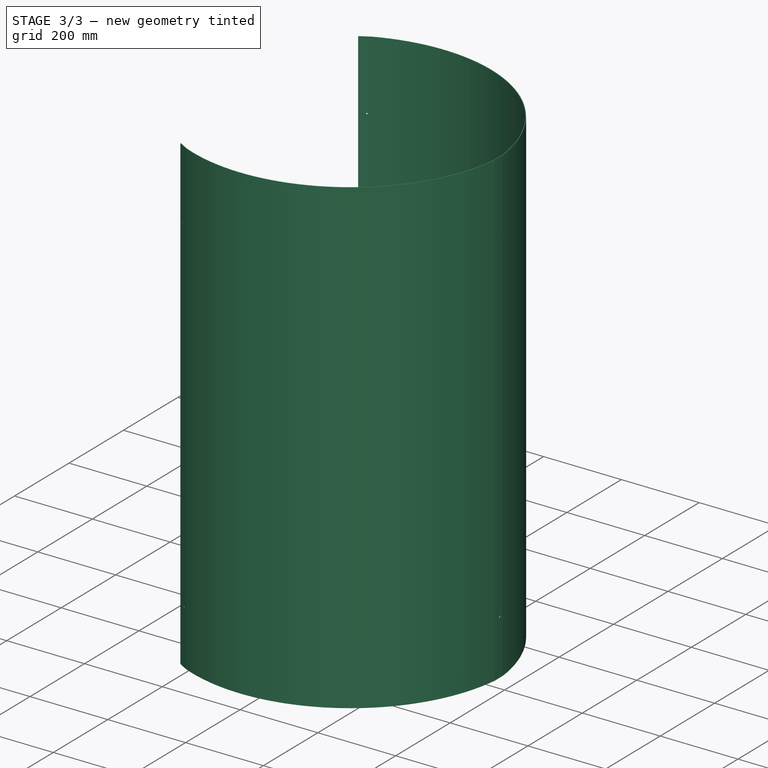
[diagram: stage 3 of 3 — iso view after this stage's code; geometry added in this stage tinted green]
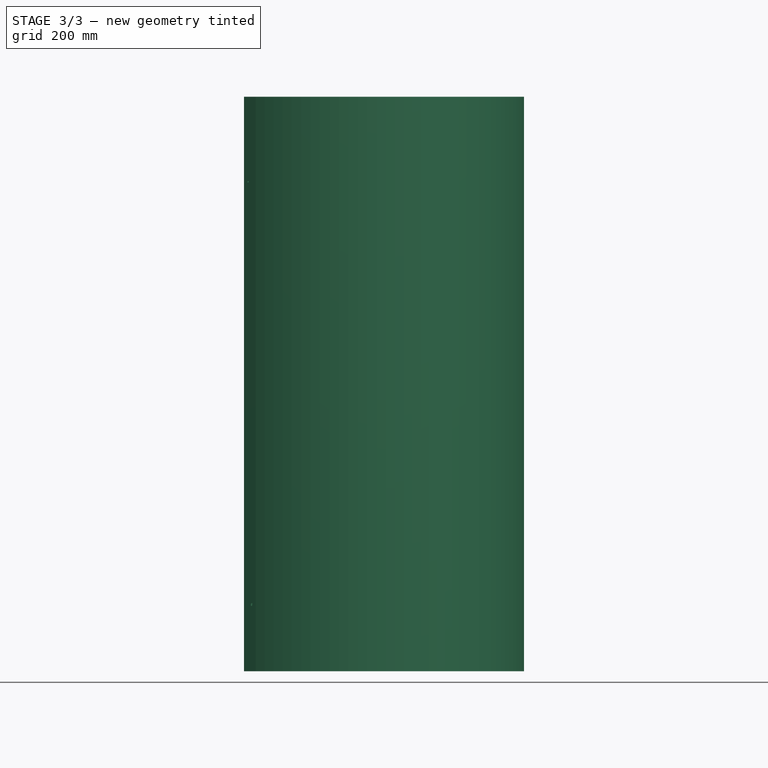
[diagram: stage 3 of 3 — front view after this stage's code; geometry added in this stage tinted green]
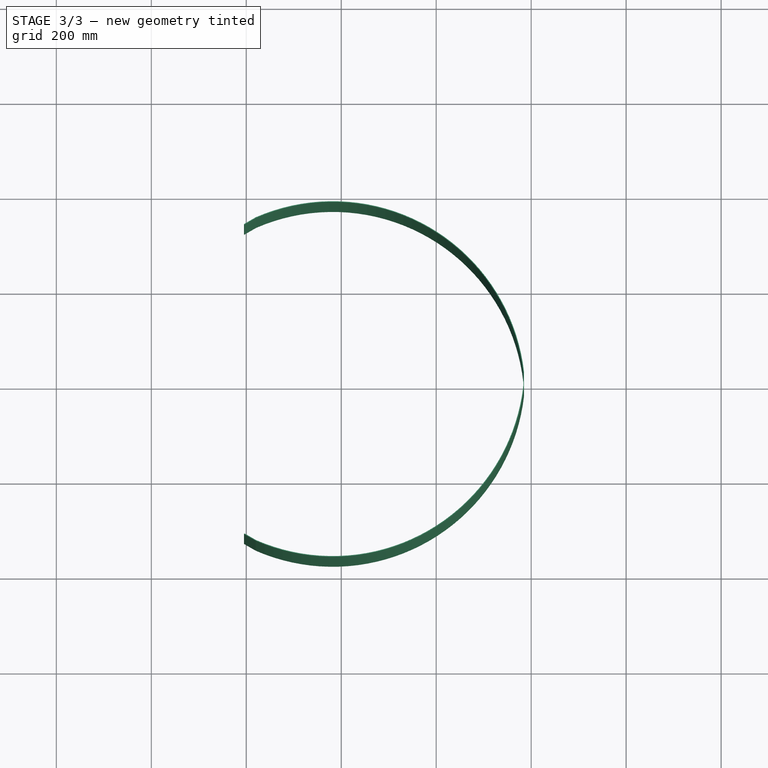
[diagram: stage 3 of 3 — top view after this stage's code; geometry added in this stage tinted green]
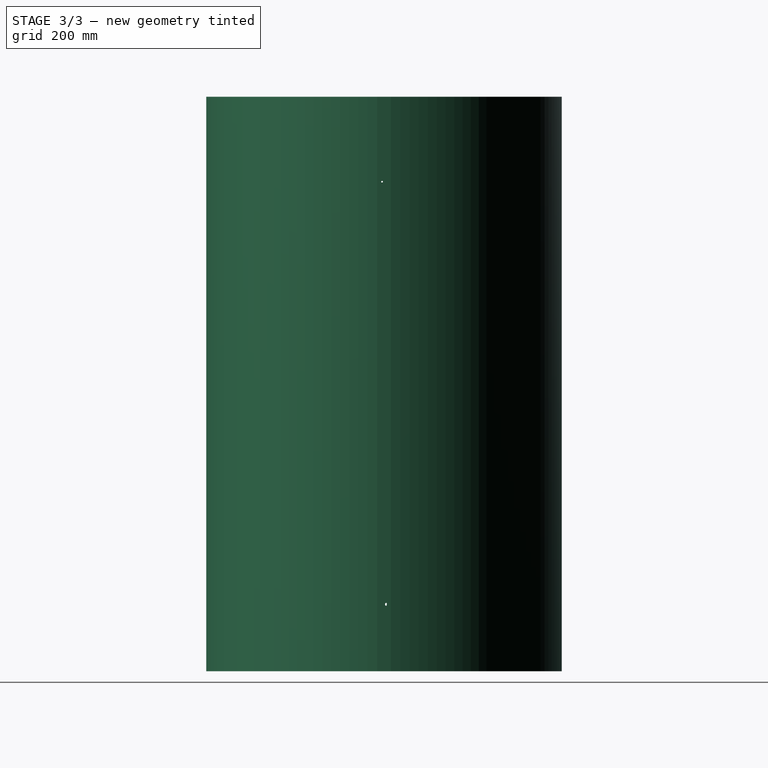
[diagram: stage 3 of 3 — right view after this stage's code; geometry added in this stage tinted green]
FEATURE [PartDesign::FeaturePython] Extend  # WARN: FeaturePython — macro-defined, semantics opaque (R4)
  BaseFeature = -> BaseBend
  Offset = 0.02
  Refine = true
  Suppressed = false
  UseSubtraction = false
  baseObject = -> BaseBend [Face1]
  gap1 = 0
  gap2 = 0
  length = 0
FEATURE [Part::MultiFuse] Fusion
  Shapes = -> [Populate,Populate002]
FEATURE [PartDesign::Boolean] Boolean
  BaseFeature = -> Extend
  Group = -> [Fusion]
  Suppressed = false
  Type = 1
  UsePlacement = true
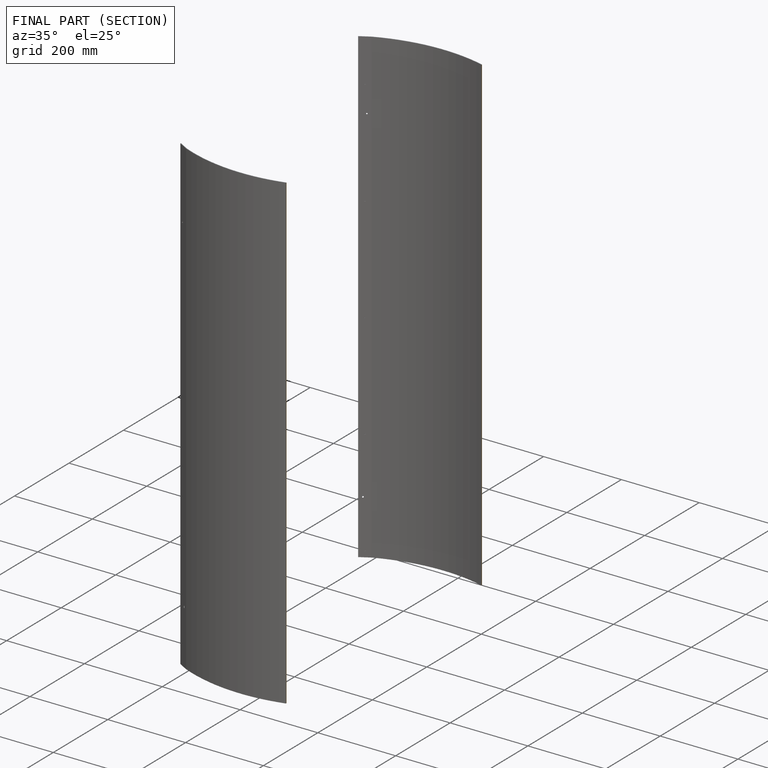
[diagram: finished part — half-section view (interior)]
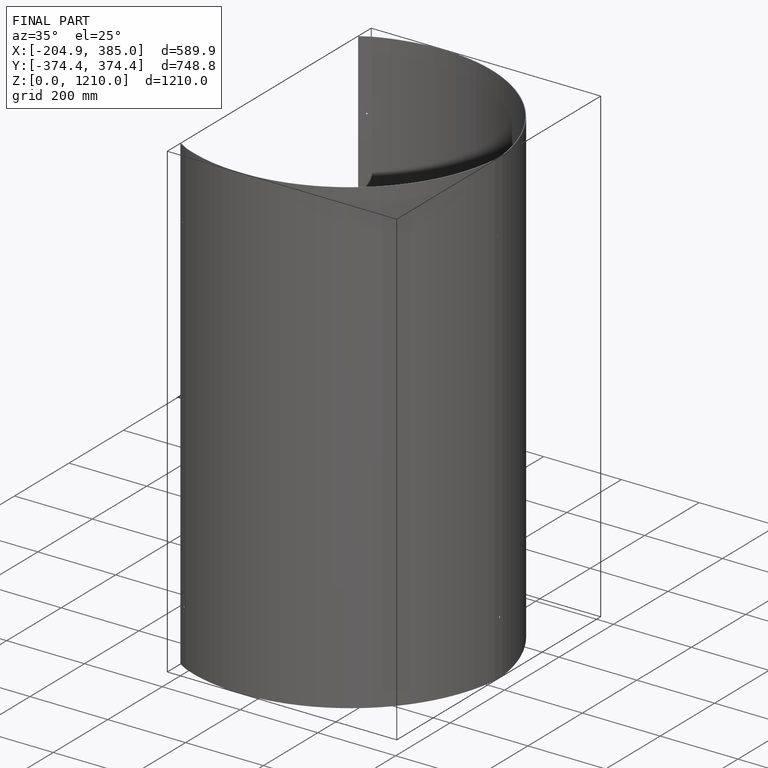
[diagram: finished part — iso view with bounding-box wireframe]
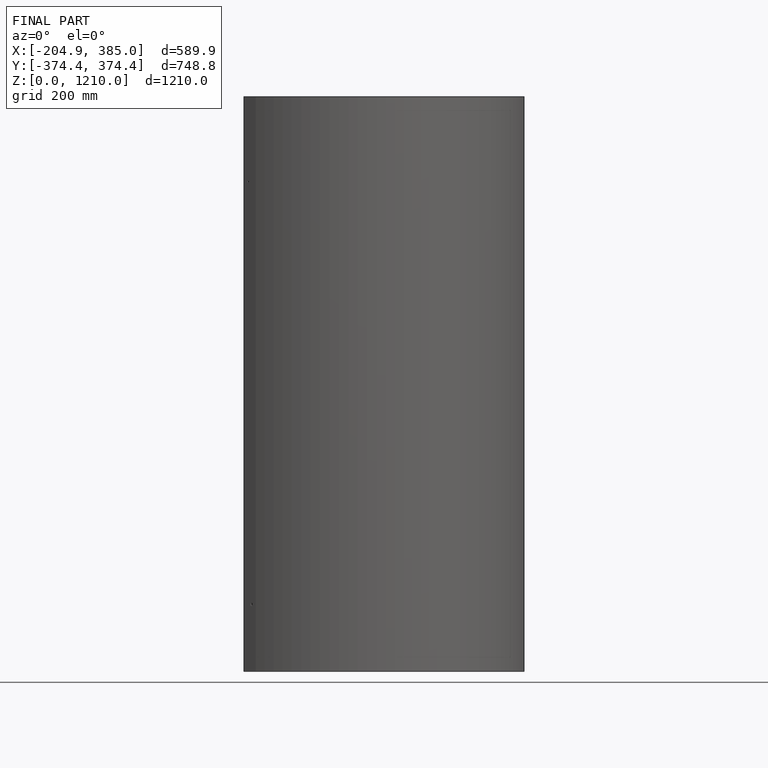
[diagram: finished part — front view with bounding-box wireframe]
